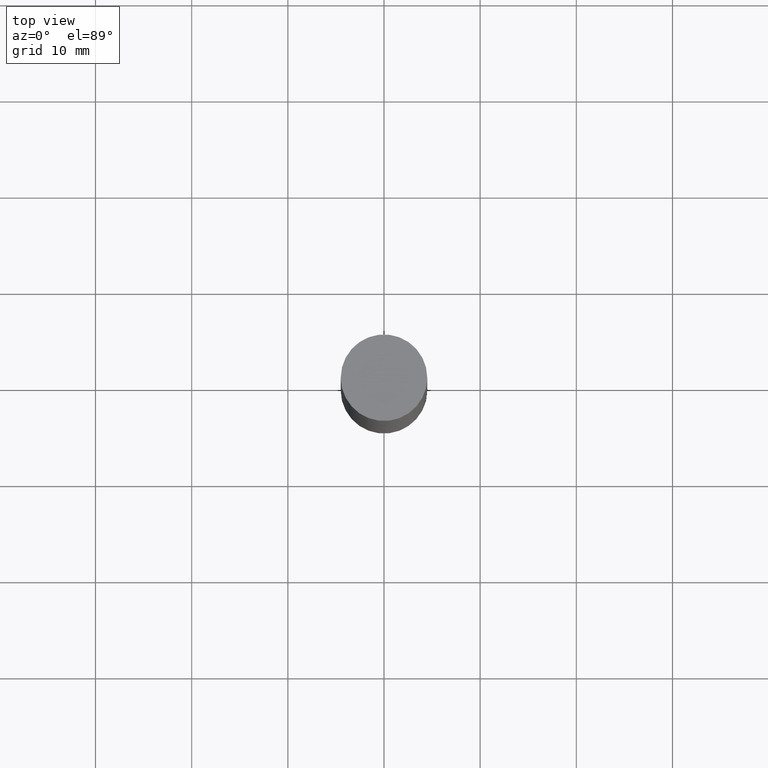
[diagram: clean part render]
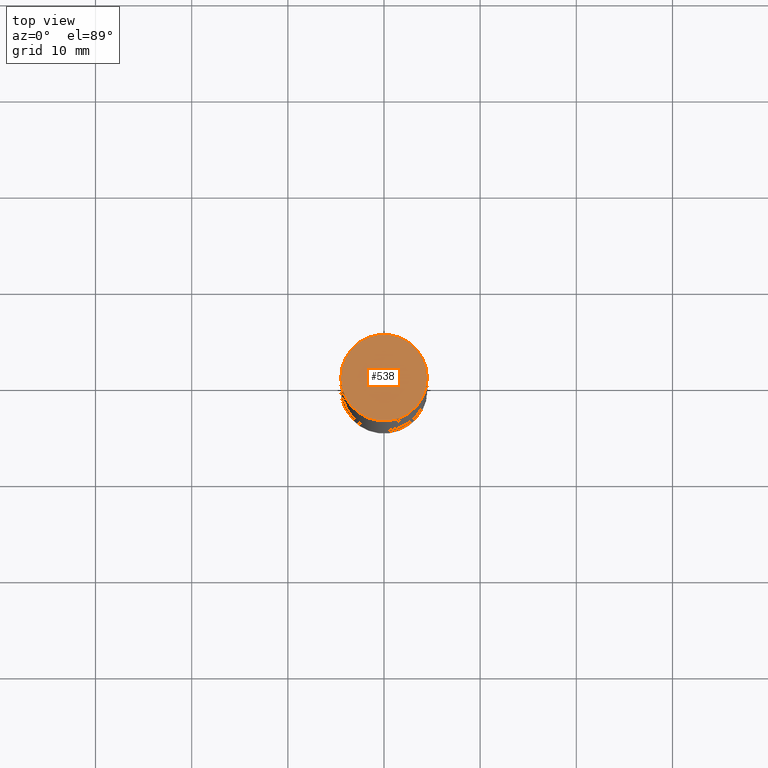
[diagram: same view with one face highlighted and labeled with its STEP entity id]
A machine part, top view. The second image highlights one B-rep face of the part: STEP entity #538.
In plain terms, the highlighted planar face has unit normal (0, 0, 1).
Its self-contained STEP definition (entity closure, byte-faithful):
#19 = VERTEX_POINT ( 'NONE', #603 ) ;
#80 = DIRECTION ( 'NONE',  ( -1.000000000000000000, 6.982962677686265922E-15, -9.839502134516470631E-33 ) ) ;
#187 = CARTESIAN_POINT ( 'NONE',  ( 7.220980290903470182E-29, 2.080354946989631982E-18, 5.463695987328526437E-16 ) ) ;
#188 = CIRCLE ( 'NONE', #214, 0.1771500000000000019 ) ;
#214 = AXIS2_PLACEMENT_3D ( 'NONE', #187, #554, #658 ) ;
#236 = DIRECTION ( 'NONE',  ( 2.438088387897959769E-29, 3.492890411551753071E-15, 1.000000000000000000 ) ) ;
#240 = CARTESIAN_POINT ( 'NONE',  ( 1.237031838352194377E-15, 0.1771500000000000019, 0.000000000000000000 ) ) ;
#259 = DIRECTION ( 'NONE',  ( 1.000000000000000000, -6.982962677686266711E-15, 0.000000000000000000 ) ) ;
#267 = CIRCLE ( 'NONE', #442, 0.1771500000000000019 ) ;
#312 = EDGE_CURVE ( 'NONE', #404, #19, #267, .T. ) ;
#365 = DIRECTION ( 'NONE',  ( 2.445468806185136597E-29, 3.492890411551752677E-15, 1.000000000000000000 ) ) ;
#399 = PLANE ( 'NONE',  #589 ) ;
#404 = VERTEX_POINT ( 'NONE', #678 ) ;
#424 = ORIENTED_EDGE ( 'NONE', *, *, #312, .T. ) ;
#433 = EDGE_LOOP ( 'NONE', ( #424, #576 ) ) ;
#442 = AXIS2_PLACEMENT_3D ( 'NONE', #675, #365, #259 ) ;
#524 = EDGE_CURVE ( 'NONE', #19, #404, #188, .T. ) ;
#538 = ADVANCED_FACE ( 'NONE', ( #597 ), #399, .T. ) ;
#554 = DIRECTION ( 'NONE',  ( 2.445468806185136597E-29, 3.492890411551752677E-15, 1.000000000000000000 ) ) ;
#576 = ORIENTED_EDGE ( 'NONE', *, *, #524, .T. ) ;
#589 = AXIS2_PLACEMENT_3D ( 'NONE', #240, #236, #80 ) ;
#597 = FACE_OUTER_BOUND ( 'NONE', #433, .T. ) ;
#603 = CARTESIAN_POINT ( 'NONE',  ( -0.1771500000000000019, 2.547769778285537851E-16, 5.463695987328559963E-16 ) ) ;
#658 = DIRECTION ( 'NONE',  ( 1.000000000000000000, -6.982962677686266711E-15, 0.000000000000000000 ) ) ;
#675 = CARTESIAN_POINT ( 'NONE',  ( 7.220980290903470182E-29, 2.080354946989631982E-18, 5.463695987328526437E-16 ) ) ;
#678 = CARTESIAN_POINT ( 'NONE',  ( 0.1771500000000000019, -1.234951483405132701E-15, 5.463695987328526437E-16 ) ) ;